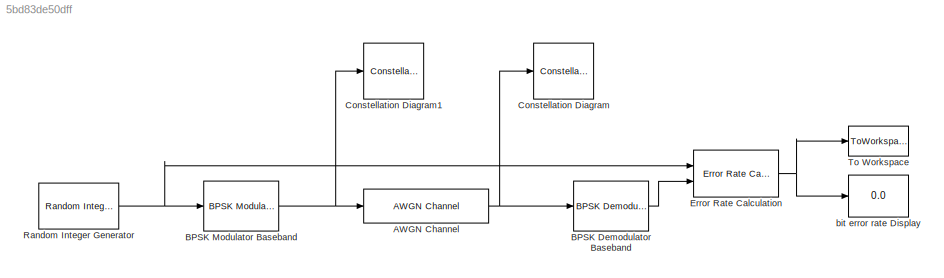
MODEL slx_5bd83de50dff
KIND model
CONFIG AbsTol = auto
CONFIG FixedStep = auto
CONFIG MaxStep = auto
CONFIG MinStep = auto
CONFIG RelTol = 1e-3
CONFIG SampleTimeConstraint = Unconstrained
CONFIG Solver = VariableStepDiscrete
CONFIG SolverMode = SingleTasking
CONFIG SolverName = VariableStepDiscrete
CONFIG StartTime = 0.0
CONFIG StopTime = 1000000
BLOCK [Reference] AWGN Channel  REF=commchan3/AWGN
Channel
  Ports = [1, 1]
  SourceBlock = commchan3/AWGN\nChannel
  SourceType = AWGN Channel
  UserDataPersistent = on
BLOCK [Reference] BPSK Demodulator Baseband  REF=commdigbbndpm3/BPSK
Demodulator
Baseband
  Ports = [1, 1]
  SourceBlock = commdigbbndpm3/BPSK\nDemodulator\nBaseband
  SourceType = BPSK Demodulator Baseband
BLOCK [Reference] BPSK Modulator Baseband  REF=commdigbbndpm3/BPSK
Modulator
Baseband
  Ports = [1, 1]
  SourceBlock = commdigbbndpm3/BPSK\nModulator\nBaseband
  SourceType = BPSK Modulator Baseband
BLOCK [ConstellationDiagram] Constellation Diagram
  Ports = [1]
  ScopeSpecificationString = comm.scopes.ConstellationDiagramBlockCfg('CurrentConfiguration', extmgr.ConfigurationSet(extmgr.Configuration('Core','General UI',true),extmgr.Configuration('Core','Source UI',true),extmgr.Configuration('Sources','WiredSimulink',true),extmgr.Configuration('Sources','Simulink',false),extmgr.Configuration('Sources','SimulinkEvent',false),extmgr.Configuration('Sources','File',false),extmgr.Configurat...<+2723ch>
BLOCK [ConstellationDiagram] Constellation Diagram1
  Ports = [1]
  ScopeSpecificationString = comm.scopes.ConstellationDiagramBlockCfg('CurrentConfiguration', extmgr.ConfigurationSet(extmgr.Configuration('Core','General UI',true),extmgr.Configuration('Core','Source UI',true),extmgr.Configuration('Sources','WiredSimulink',true),extmgr.Configuration('Visuals','Constellation',true,'LineProperties',struct('DisplayName','','Color',[1 1 0.0666666666666667],'LineStyle','none','LineWidth',0.5,'Mar...<+1148ch>
BLOCK [Reference] Error Rate Calculation  REF=commsink2/Error Rate
Calculation
  Ports = [2, 1]
  SourceBlock = commsink2/Error Rate\nCalculation
  SourceType = Error Rate Calculation
BLOCK [Reference] Random Integer Generator  REF=commrandsrc3/Random Integer
Generator
  Ports = [0, 1]
  SourceBlock = commrandsrc3/Random Integer\nGenerator
  SourceType = Random Integer Generator
BLOCK [ToWorkspace] To Workspace
  FixptAsFi = on
  MaxDataPoints = 2
  Ports = [1]
  SampleTime = -1
  Save2DSignal = 2-D array (concatenate along first dimension)
  VariableName = ber
BLOCK [Display] bit error rate Display
  Decimation = 1
  Ports = [1]
NET AWGN Channel:1 -> BPSK Demodulator Baseband:1, Constellation Diagram:1
LINE BPSK Demodulator Baseband:1 -> Error Rate Calculation:2
NET BPSK Modulator Baseband:1 -> AWGN Channel:1, Constellation Diagram1:1
NET Error Rate Calculation:1 -> To Workspace:1, bit error rate Display:1
NET Random Integer Generator:1 -> BPSK Modulator Baseband:1, Error Rate Calculation:1
note: NET lines group one-source signal fan-out (src -> all destinations, sorted); 1:1 wires keep LINE
